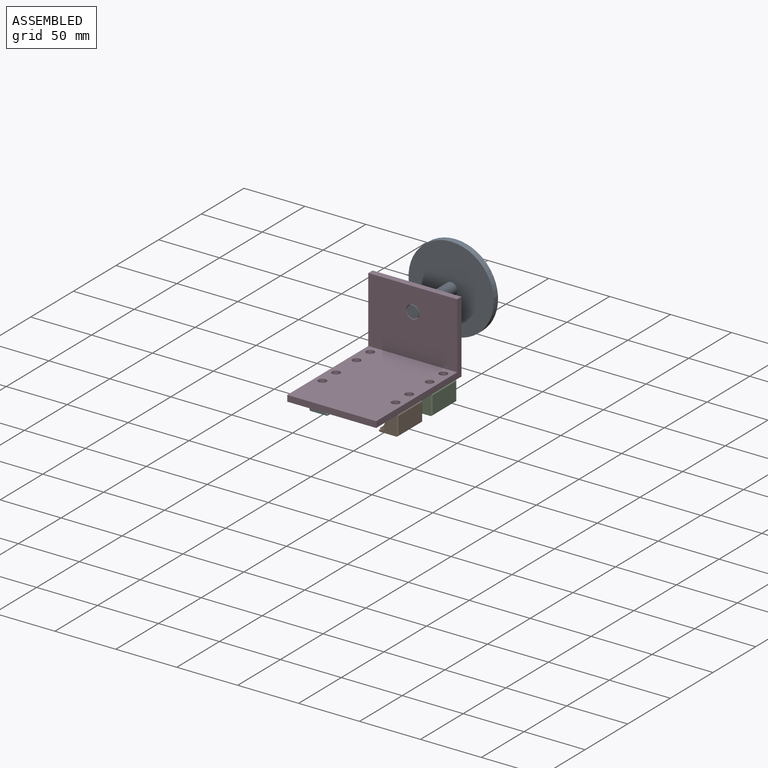
[diagram: assembled view]
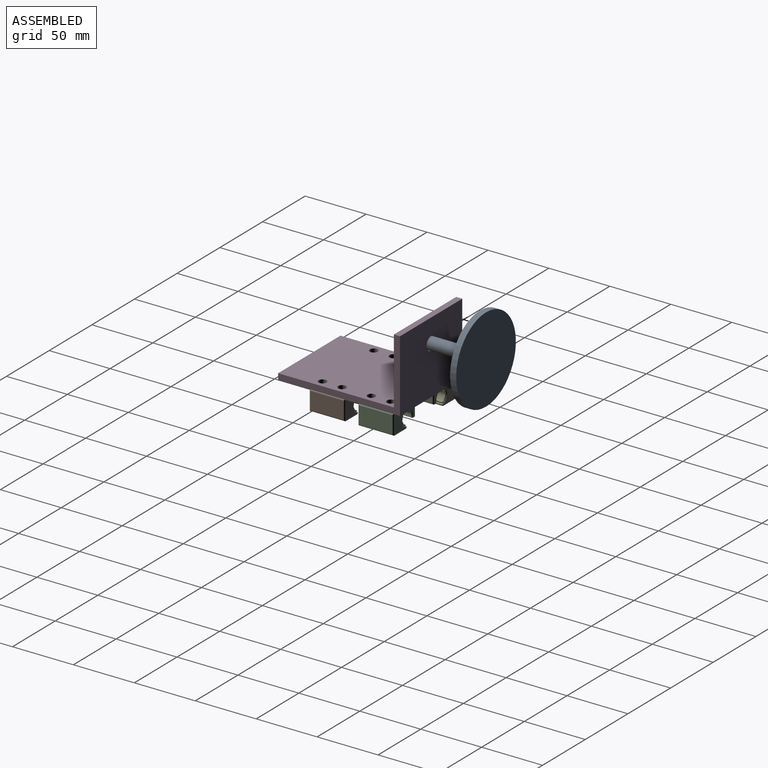
[diagram: assembled view, second angle]
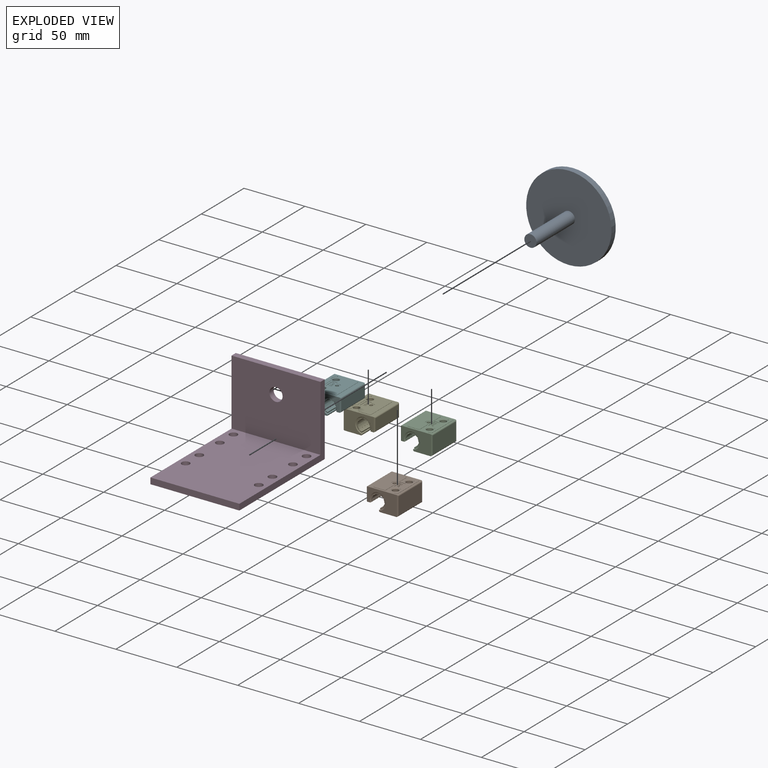
[diagram: exploded view]
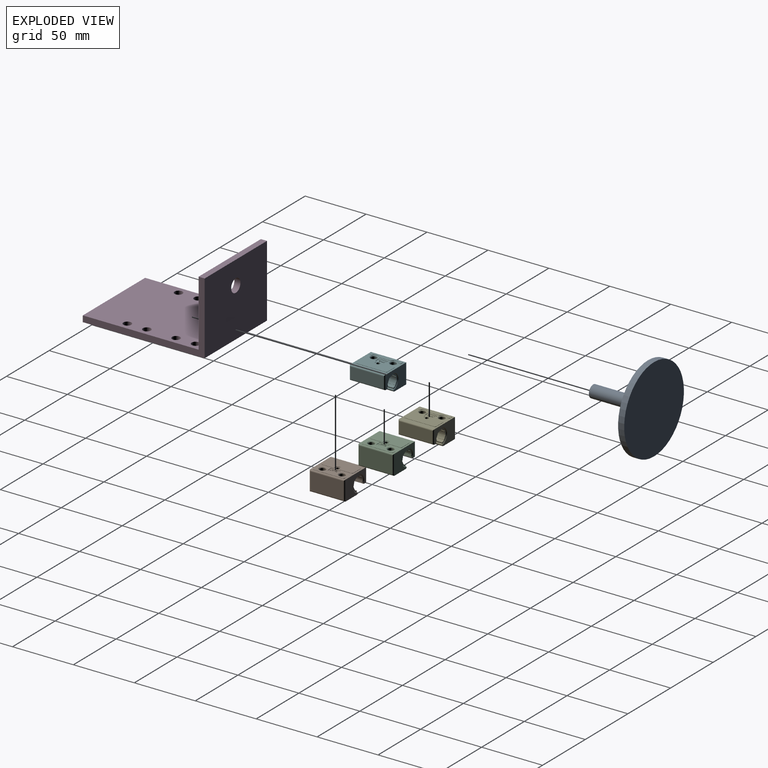
[diagram: exploded view, second angle]
ASSEMBLY  parts=6 mates=5
PART A: 5 faces, bbox 70x50x70 mm
  f0: cylinder r=35mm len=70mm, axis (0,1,0), area 1099.6mm2, adj f1,f2
  f1: plane 70x70mm, normal (0,-1,0), area 3769.9mm2, adj f0,f3
  f2: plane 70x70mm, normal (0,1,0), area 3848.5mm2, adj f0
  f3: cylinder r=5mm len=45mm, axis (0,1,0), area 1413.7mm2, adj f1,f4
  f4: plane 10x10mm, normal (0,-1,0), area 78.5mm2, adj f3
PART B: 223 faces, bbox 26x29x16.5 mm
  f0: cylinder r=5mm len=28mm, axis (0,1,0), area 73.3mm2, adj f176,f204,f212,f214
  f1: cylinder r=5mm len=28mm, axis (0,1,0), area 73.3mm2, adj f176,f209,f212,f218
  f2: cone r=2.75mm half-angle=45deg, axis (0,0,-1), area 12.2mm2, adj f3,f124
  f3: cylinder r=2.5mm len=11.8mm, axis (0,0,1), area 185.4mm2, adj f2,f4
  f4: cone r=2.75mm half-angle=45deg, axis (0,0,1), area 12.2mm2, adj f3,f161
  f5: cone r=2.75mm half-angle=45deg, axis (0,0,-1), area 12.2mm2, adj f6,f123
  f6: cylinder r=2.5mm len=11.8mm, axis (0,0,1), area 185.4mm2, adj f5,f7
  f7: cone r=2.75mm half-angle=45deg, axis (0,0,1), area 12.2mm2, adj f6,f161
  f8: cylinder r=1.4mm len=4.05mm, axis (0,0,1), area 27.7mm2, adj f9,f161
  f9: cylinder r=6.9mm len=13.8mm, axis (0,1,0), area 95mm2, adj f8,f20,f125,f126,f163
  f10: cone r=6.25mm half-angle=45deg, axis (0,1,0), area 21.8mm2, adj f21,f22,f127,f129,f131,f132,f133,f212
  f11: cone r=6.25mm half-angle=45deg, axis (0,-1,0), area 21.8mm2, adj f18,f19,f113,f128,f130,f164,f165,f176
  f12: cylinder r=4.75mm len=9.5mm, axis (0,0,1), area 104.5mm2, adj f124,f162
  f13: cylinder r=4.75mm len=9.5mm, axis (0,0,1), area 104.5mm2, adj f123,f162
  f14: cylinder r=0.1mm len=0.2mm, axis (0,0,1), area 0.1mm2, adj f87,f105
  f15: cylinder r=0.68mm len=1.35mm, axis (0,0,1), area 0.3mm2, adj f25,f40,f108
  f16: cylinder r=0.28mm len=0.55mm, axis (0,0,1), area 0.3mm2, adj f23,f105
  f17: cylinder r=0.25mm len=0.5mm, axis (0,0,1), area 0.2mm2, adj f23,f103
  f18: cylinder r=6mm len=12.5mm, axis (0,1,0), area 5.4mm2, adj f11,f20,f128,f173
  f19: cylinder r=6mm len=12.5mm, axis (0,1,0), area 5.4mm2, adj f11,f20,f165,f172
  f20: plane 13.8x13.73mm, normal (0,1,0), area 14.9mm2, adj f9,f18,f19,f126,f128,f130,f163,f164
  f21: cylinder r=6mm len=12.5mm, axis (0,1,0), area 5.4mm2, adj f10,f125,f132,f172
  f22: cylinder r=6mm len=12.5mm, axis (0,1,0), area 5.4mm2, adj f10,f125,f127,f173
  f23: plane 0.55x0.55mm, normal (0,0,1), area 0mm2, adj f16,f17
  f24: plane 0.15x0.15mm, normal (-1,0,0), area 0mm2, adj f32,f40,f41,f105
  f25: plane 1.35x0.15mm, normal (-1,0,0), area 0.2mm2, adj f15,f40,f108
  f26: plane 1.35x0.15mm, normal (-1,0,0), area 0.2mm2, adj f37,f40,f52,f105
  f27: plane 0.26x0.15mm, normal (-1,0,0), area 0mm2, adj f33,f35,f40,f105
  f28: plane 0.15x0.15mm, normal (1,0,0), area 0mm2, adj f32,f39,f40,f105
  f29: plane 1.34x0.15mm, normal (1,0,0), area 0.2mm2, adj f38,f40,f107
  f30: plane 1.35x0.15mm, normal (1,0,0), area 0.2mm2, adj f36,f40,f106
  f31: plane 0.24x0.15mm, normal (1,0,0), area 0mm2, adj f33,f34,f40,f105
  f32: plane 0.15x0.03mm, normal (0,-1,0), area 0mm2, adj f24,f28,f40,f105
  f33: plane 0.15x0.03mm, normal (0,1,0), area 0mm2, adj f27,f31,f40,f105
  f34: cylinder r=0.45mm len=0.75mm, axis (0,0,1), area 0.2mm2, adj f31,f40,f66,f105
  f35: cylinder r=0.45mm len=0.31mm, axis (0,0,1), area 0.1mm2, adj f27,f40,f65,f105
  f36: cylinder r=0.68mm len=1.35mm, axis (0,0,1), area 0.3mm2, adj f30,f40,f106
  f37: plane 0.88x0.15mm, normal (0,1,0), area 0.1mm2, adj f26,f40,f51,f105
  f38: cylinder r=0.68mm len=1.34mm, axis (0,0,1), area 0.3mm2, adj f29,f40,f107
  f39: plane 0.75x0.15mm, normal (0,-1,0), area 0.1mm2, adj f28,f40,f86,f105
  f40: plane 5x2.53mm, normal (0,0,1), area 3.1mm2, adj f15,f24,f25,f26,f27,f28,f29,f30
  f41: plane 0.9x0.15mm, normal (0,-1,0), area 0.1mm2, adj f24,f40,f42,f105
  f42: plane 0.15x0.15mm, normal (-1,0,0), area 0mm2, adj f40,f41,f43,f105
  f43: plane 0.88x0.15mm, normal (0,1,0), area 0.1mm2, adj f40,f42,f44,f105
  f44: plane 0.15x0.03mm, normal (-1,0,0), area 0mm2, adj f40,f43,f45,f105
  f45: cylinder r=0.81mm len=1.51mm, axis (0,0,1), area 0.3mm2, adj f40,f44,f46,f105
  f46: plane 0.35x0.15mm, normal (0,-1,0), area 0.1mm2, adj f40,f45,f47,f105
  f47: plane 0.15x0.15mm, normal (-1,0,0), area 0mm2, adj f40,f46,f48,f105
  f48: plane 0.88x0.15mm, normal (0,1,0), area 0.1mm2, adj f40,f47,f49,f105
  f49: plane 0.15x0.03mm, normal (-1,0,0), area 0mm2, adj f40,f48,f50,f105
  f50: plane 0.88x0.15mm, normal (0,-1,0), area 0.1mm2, adj f40,f49,f51,f105
  f51: plane 0.15x0.15mm, normal (-1,0,0), area 0mm2, adj f37,f40,f50,f105
  f52: cylinder r=0.68mm len=0.15mm, axis (0,0,1), area 0mm2, adj f26,f40,f53,f105
  f53: plane 0.83x0.15mm, normal (0,-1,0), area 0.1mm2, adj f40,f52,f54,f105
  f54: plane 0.15x0.15mm, normal (-1,0,0), area 0mm2, adj f40,f53,f55,f105
  f55: plane 0.88x0.15mm, normal (0,1,0), area 0.1mm2, adj f40,f54,f56,f105
  f56: plane 0.3x0.15mm, normal (-1,0,0), area 0mm2, adj f40,f55,f57,f105
  f57: cylinder r=0.49mm len=0.43mm, axis (0,0,1), area 0.1mm2, adj f40,f56,f58,f105
  f58: cylinder r=0.4mm len=0.45mm, axis (0,0,1), area 0.1mm2, adj f40,f57,f59,f105
  f59: plane 0.38x0.15mm, normal (-1,0,0), area 0.1mm2, adj f40,f58,f60,f105
  f60: cylinder r=0.35mm len=0.35mm, axis (0,0,1), area 0.1mm2, adj f40,f59,f61,f105
  f61: plane 0.15x0.15mm, normal (1,0,0), area 0mm2, adj f40,f60,f62,f105
  f62: cylinder r=0.26mm len=0.25mm, axis (0,0,1), area 0.1mm2, adj f40,f61,f63,f105
  f63: plane 0.28x0.15mm, normal (1,0,0), area 0mm2, adj f40,f62,f64,f105
  f64: cylinder r=0.3mm len=0.6mm, axis (0,0,1), area 0.1mm2, adj f40,f63,f65,f105
  f65: plane 0.28x0.15mm, normal (-1,0,0), area 0mm2, adj f35,f40,f64,f105
  f66: plane 0.4x0.15mm, normal (1,0,0), area 0.1mm2, adj f34,f40,f67,f105
  f67: cylinder r=0.35mm len=0.35mm, axis (0,0,1), area 0.1mm2, adj f40,f66,f68,f105
  f68: plane 0.15x0.15mm, normal (-1,0,0), area 0mm2, adj f40,f67,f69,f105
  f69: cylinder r=0.26mm len=0.25mm, axis (0,0,1), area 0.1mm2, adj f40,f68,f70,f105
  f70: plane 0.35x0.15mm, normal (-1,0,0), area 0.1mm2, adj f40,f69,f71,f105
  f71: cylinder r=0.3mm len=0.6mm, axis (0,0,1), area 0.1mm2, adj f40,f70,f72,f105
  f72: plane 0.78x0.15mm, normal (1,0,0), area 0.1mm2, adj f40,f71,f73,f105
  f73: plane 0.75x0.15mm, normal (0,1,0), area 0.1mm2, adj f40,f72,f74,f105
  f74: plane 0.15x0.15mm, normal (1,0,0), area 0mm2, adj f40,f73,f75,f105
  f75: plane 0.35x0.15mm, normal (0,-1,0), area 0.1mm2, adj f40,f74,f76,f105
  f76: cylinder r=0.8mm len=1.5mm, axis (0,0,1), area 0.3mm2, adj f40,f75,f77,f105
  f77: plane 0.15x0.03mm, normal (1,0,0), area 0mm2, adj f40,f76,f78,f105
  f78: plane 0.75x0.15mm, normal (0,1,0), area 0.1mm2, adj f40,f77,f79,f105
  f79: cylinder r=0.82mm len=1.65mm, axis (0,0,1), area 0.4mm2, adj f40,f78,f80,f105
  f80: plane 0.15x0.15mm, normal (-1,0,0), area 0mm2, adj f40,f79,f81,f105
  f81: cylinder r=0.68mm len=1.35mm, axis (0,0,1), area 0.3mm2, adj f40,f80,f82,f105
  f82: plane 0.4x0.15mm, normal (0,-1,0), area 0.1mm2, adj f40,f81,f83,f105
  f83: cylinder r=0.79mm len=1.5mm, axis (0,0,1), area 0.3mm2, adj f40,f82,f84,f105
  f84: plane 0.15x0.03mm, normal (1,0,0), area 0mm2, adj f40,f83,f85,f105
  f85: plane 0.75x0.15mm, normal (0,1,0), area 0.1mm2, adj f40,f84,f86,f105
  f86: plane 0.15x0.15mm, normal (1,0,0), area 0mm2, adj f39,f40,f85,f105
  f87: plane 0.2x0.2mm, normal (0,0,1), area 0mm2, adj f14
  f88: plane 0.15x0.15mm, normal (0,1,0), area 0mm2, adj f89,f91,f102,f104
  f89: plane 0.15x0.06mm, normal (1,0,0), area 0mm2, adj f88,f90,f102,f104
  f90: cylinder r=0.07mm len=0.15mm, axis (0,0,1), area 0mm2, adj f89,f91,f102,f104
  f91: plane 0.15x0.06mm, normal (-1,0,0), area 0mm2, adj f88,f90,f102,f104
  f92: plane 0.18x0.15mm, normal (0,1,0), area 0mm2, adj f93,f101,f102,f103
  f93: plane 0.15x0.01mm, normal (1,0,0), area 0mm2, adj f92,f94,f102,f103
  f94: plane 0.35x0.15mm, normal (0,-1,0), area 0.1mm2, adj f93,f95,f102,f103
  f95: plane 0.15x0.08mm, normal (-1,0,0), area 0mm2, adj f94,f96,f102,f103
  f96: cylinder r=0.09mm len=0.18mm, axis (0,0,1), area 0mm2, adj f95,f97,f102,f103
  f97: plane 0.15x0.01mm, normal (1,0,0), area 0mm2, adj f96,f98,f102,f103
  f98: plane 0.18x0.15mm, normal (-0.5,0.87,0), area 0mm2, adj f97,f99,f102,f103
  f99: plane 0.15x0.01mm, normal (1,0,0), area 0mm2, adj f98,f100,f102,f103
  f100: plane 0.18x0.15mm, normal (0.5,-0.87,0), area 0mm2, adj f99,f101,f102,f103
  f101: plane 0.15x0.04mm, normal (1,0,0), area 0mm2, adj f92,f100,f102,f103
  f102: plane 0.35x0.16mm, normal (0,0,1), area 0mm2, adj f88,f89,f90,f91,f92,f93,f94,f95
  f103: plane 0.5x0.5mm, normal (0,0,1), area 0.2mm2, adj f17,f92,f93,f94,f95,f96,f97,f98
  f104: plane 0.15x0.14mm, normal (0,0,1), area 0mm2, adj f88,f89,f90,f91
  f105: plane 8x4mm, normal (0,0,1), area 26.6mm2, adj f14,f16,f24,f26,f27,f28,f31,f32
  f106: plane 1.35x0.6mm, normal (0,0,1), area 0.6mm2, adj f30,f36
  f107: plane 1.34x0.6mm, normal (0,0,1), area 0.6mm2, adj f29,f38
  f108: plane 1.35x0.73mm, normal (0,0,1), area 0.8mm2, adj f15,f25
  f109: cylinder r=1mm len=11.3mm, axis (0,0,1), area 16.2mm2, adj f110,f111,f131,f160
  f110: cylinder r=1mm len=29mm, axis (0,1,0), area 44mm2, adj f109,f111,f112,f126
  f111: plane 27x9.3mm, normal (1,0,0), area 251.1mm2, adj f109,f110,f112,f160
  f112: cylinder r=1mm len=11.3mm, axis (0,0,1), area 16.2mm2, adj f110,f111,f113,f160
  f113: plane 24x16.3mm, normal (0,-1,0), area 232.2mm2, adj f11,f112,f117,f118,f126,f130,f161,f162
  f114: cylinder r=1mm len=16.24mm, axis (0,0,1), area 24mm2, adj f115,f116,f118,f131
  f115: cylinder r=1mm len=29mm, axis (0,1,0), area 44mm2, adj f114,f116,f117,f161
  f116: plane 27x14.3mm, normal (-1,0,0), area 386.1mm2, adj f114,f115,f117,f118
  f117: cylinder r=1mm len=16.24mm, axis (0,0,1), area 24mm2, adj f113,f115,f116,f118
  f118: cylinder r=1.53mm len=29mm, axis (0,1,0), area 55.1mm2, adj f113,f114,f116,f117,f131,f162
  f119: plane 4x0.3mm, normal (0,1,0), area 1.2mm2, adj f105,f120,f122,f161
  f120: plane 8x0.3mm, normal (1,0,0), area 2.4mm2, adj f105,f119,f121,f161
  f121: plane 4x0.3mm, normal (0,-1,0), area 1.2mm2, adj f105,f120,f122,f161
  f122: plane 8x0.3mm, normal (-1,0,0), area 2.4mm2, adj f105,f119,f121,f161
  f123: plane 9.5x9.5mm, normal (0,0,-1), area 42.6mm2, adj f5,f13
  f124: plane 9.5x9.5mm, normal (0,0,-1), area 42.6mm2, adj f2,f12
  f125: plane 13.8x13.73mm, normal (0,-1,0), area 14.9mm2, adj f9,f21,f22,f126,f127,f129,f132,f133
  f126: plane 29x2.37mm, normal (0,0,-1), area 67.8mm2, adj f9,f20,f110,f113,f125,f129,f130,f131
  f127: cylinder r=0.5mm len=12.91mm, axis (0,1,0), area 8.6mm2, adj f10,f22,f125,f129
  f128: cylinder r=0.5mm len=12.91mm, axis (0,1,0), area 8.6mm2, adj f11,f18,f20,f130
  f129: plane 13x0.18mm, normal (-0.5,0,-0.87), area 2.7mm2, adj f10,f125,f126,f127,f131
  f130: plane 13x0.18mm, normal (-0.5,0,-0.87), area 2.7mm2, adj f11,f20,f113,f126,f128
  f131: plane 24x16.3mm, normal (0,1,0), area 232.2mm2, adj f10,f109,f114,f118,f126,f129,f133,f161
  f132: cylinder r=0.5mm len=12.91mm, axis (0,1,0), area 8.6mm2, adj f10,f21,f125,f133
  f133: plane 13x0.15mm, normal (1,0,0), area 2mm2, adj f10,f125,f131,f132,f163
  f134: cylinder r=3.5mm len=6.32mm, axis (0,0,-1), area 1.6mm2, adj f135,f145,f146,f161
  f135: plane 9.68x0.2mm, normal (1,0,0), area 1.9mm2, adj f134,f136,f146,f161
  f136: cylinder r=3.5mm len=6.32mm, axis (0,0,-1), area 1.6mm2, adj f135,f137,f146,f161
  f137: plane 0.84x0.2mm, normal (1,0,0), area 0.2mm2, adj f136,f138,f146,f161
  f138: cylinder r=1mm len=1mm, axis (0,0,-1), area 0.3mm2, adj f137,f139,f146,f161
  f139: plane 1.5x0.2mm, normal (0,1,0), area 0.3mm2, adj f138,f140,f146,f161
  f140: cylinder r=1mm len=1mm, axis (0,0,-1), area 0.3mm2, adj f139,f141,f146,f161
  f141: plane 24x0.2mm, normal (-1,0,0), area 4.8mm2, adj f140,f142,f146,f161
  f142: cylinder r=1mm len=1mm, axis (0,0,-1), area 0.3mm2, adj f141,f143,f146,f161
  f143: plane 1.5x0.2mm, normal (0,-1,0), area 0.3mm2, adj f142,f144,f146,f161
  f144: cylinder r=1mm len=1mm, axis (0,0,-1), area 0.3mm2, adj f143,f145,f146,f161
  f145: plane 0.84x0.2mm, normal (1,0,0), area 0.2mm2, adj f134,f144,f146,f161
  f146: plane 26x3.5mm, normal (0,0,1), area 72mm2, adj f134,f135,f136,f137,f138,f139,f140,f141
  f147: cylinder r=1mm len=1mm, axis (0,0,-1), area 0.3mm2, adj f148,f158,f159,f161
  f148: plane 24x0.2mm, normal (1,0,0), area 4.8mm2, adj f147,f149,f159,f161
  f149: cylinder r=1mm len=1mm, axis (0,0,-1), area 0.3mm2, adj f148,f150,f159,f161
  f150: plane 8x0.2mm, normal (0,1,0), area 1.6mm2, adj f149,f151,f159,f161
  f151: cylinder r=1mm len=1mm, axis (0,0,-1), area 0.3mm2, adj f150,f152,f159,f161
  f152: plane 9.6x0.2mm, normal (-1,0,0), area 1.9mm2, adj f151,f153,f159,f161
  f153: plane 1.4x0.2mm, normal (0,-1,0), area 0.3mm2, adj f152,f154,f159,f161
  f154: cylinder r=2.4mm len=4.8mm, axis (0,0,-1), area 1.5mm2, adj f153,f155,f159,f161
  f155: plane 1.4x0.2mm, normal (0,1,0), area 0.3mm2, adj f154,f156,f159,f161
  f156: plane 9.6x0.2mm, normal (-1,0,0), area 1.9mm2, adj f155,f157,f159,f161
  f157: cylinder r=1mm len=1mm, axis (0,0,-1), area 0.3mm2, adj f156,f158,f159,f161
  f158: plane 8x0.2mm, normal (0,-1,0), area 1.6mm2, adj f147,f157,f159,f161
  f159: plane 26x10mm, normal (0,0,1), area 243.4mm2, adj f147,f148,f149,f150,f151,f152,f153,f154
  f160: cylinder r=1mm len=29mm, axis (0,1,0), area 44mm2, adj f109,f111,f112,f161
  f161: plane 29x24mm, normal (0,0,1), area 285.9mm2, adj f4,f7,f8,f113,f115,f119,f120,f121
  f162: plane 29x13.1mm, normal (0,0,-1), area 238.1mm2, adj f12,f13,f113,f118,f131,f163
  f163: cylinder r=1mm len=29mm, axis (0,1,0), area 44.5mm2, adj f9,f20,f113,f125,f131,f133,f162,f164
  f164: plane 13x0.15mm, normal (1,0,0), area 2mm2, adj f11,f20,f113,f163,f165
  f165: cylinder r=0.5mm len=12.91mm, axis (0,1,0), area 8.6mm2, adj f11,f19,f20,f164
  f166: cylinder r=6mm len=3mm, axis (0,1,0), area 4.7mm2, adj f20,f125,f187,f188
  f167: cylinder r=6mm len=3mm, axis (0,1,0), area 4.7mm2, adj f20,f125,f184,f185
  f168: cylinder r=6mm len=3mm, axis (0,1,0), area 4.7mm2, adj f20,f125,f182,f198
  f169: cylinder r=6mm len=3mm, axis (0,1,0), area 4.7mm2, adj f20,f125,f195,f196
  f170: cylinder r=6mm len=3mm, axis (0,1,0), area 4.7mm2, adj f20,f125,f192,f193
  f171: cylinder r=6mm len=3mm, axis (0,1,0), area 4.7mm2, adj f20,f125,f190,f191
  f172: plane 28x1.64mm, normal (0.97,0,-0.26), area 30.1mm2, adj f19,f20,f21,f125,f174,f176,f203,f212
  f173: plane 28x1.64mm, normal (-0.26,0,-0.97), area 30.1mm2, adj f18,f20,f22,f125,f175,f176,f200,f212
  f174: cylinder r=6.7mm len=3mm, axis (0,1,0), area 4.8mm2, adj f20,f125,f172,f191
  f175: cylinder r=6.7mm len=3mm, axis (0,1,0), area 4.8mm2, adj f20,f125,f173,f192
  f176: plane 12x11.75mm, normal (0,-1,0), area 23.2mm2, adj f0,f1,f11,f172,f173,f199,f200,f201
  f177: plane 1.5x0.76mm, normal (-0.87,0,-0.5), area 1.3mm2, adj f178,f179,f181,f183
  f178: plane 2.17x1.76mm, normal (0,-1,0), area 1.6mm2, adj f177,f180,f181,f183
  f179: plane 2.17x1.76mm, normal (0,1,0), area 1.6mm2, adj f177,f180,f181,f183
  f180: plane 1.5x0.76mm, normal (0.87,0,0.5), area 1.3mm2, adj f178,f179,f181,f183
  f181: plane 1.73x1.5mm, normal (-0.5,0,0.87), area 3mm2, adj f177,f178,f179,f180
  f182: plane 3x0.68mm, normal (0.97,0,0.26), area 2.1mm2, adj f20,f125,f168,f183
  f183: cylinder r=6.7mm len=3mm, axis (0,1,0), area 7.5mm2, adj f20,f125,f177,f178,f179,f180,f182,f184
  f184: plane 3x0.5mm, normal (-0.71,0,-0.71), area 2.1mm2, adj f20,f125,f167,f183
  f185: plane 3x0.61mm, normal (0.5,0,0.87), area 2.1mm2, adj f20,f125,f167,f186
  f186: cylinder r=6.7mm len=3.35mm, axis (0,1,0), area 10.5mm2, adj f20,f125,f185,f187
  f187: plane 3x0.7mm, normal (0,0,-1), area 2.1mm2, adj f20,f125,f166,f186
  f188: plane 3x0.68mm, normal (-0.26,0,0.97), area 2.1mm2, adj f20,f125,f166,f189
  f189: cylinder r=6.7mm len=3mm, axis (0,1,0), area 10.5mm2, adj f20,f125,f188,f190
  f190: plane 3x0.5mm, normal (0.71,0,-0.71), area 2.1mm2, adj f20,f125,f171,f189
  f191: plane 3x0.61mm, normal (-0.87,0,0.5), area 2.1mm2, adj f20,f125,f171,f174
  f192: plane 3x0.7mm, normal (0,0,1), area 2.1mm2, adj f20,f125,f170,f175
  f193: plane 3x0.68mm, normal (0.26,0,-0.97), area 2.1mm2, adj f20,f125,f170,f194
  f194: cylinder r=6.7mm len=3mm, axis (0,1,0), area 10.5mm2, adj f20,f125,f193,f195
  f195: plane 3x0.5mm, normal (-0.71,0,0.71), area 2.1mm2, adj f20,f125,f169,f194
  f196: plane 3x0.61mm, normal (0.87,0,-0.5), area 2.1mm2, adj f20,f125,f169,f197
  f197: cylinder r=6.7mm len=3.35mm, axis (0,1,0), area 10.5mm2, adj f20,f125,f196,f198
  f198: plane 3x0.7mm, normal (-1,0,0), area 2.1mm2, adj f20,f125,f168,f197
  f199: cylinder r=5mm len=28mm, axis (0,1,0), area 73.3mm2, adj f176,f207,f212,f220
  f200: cylinder r=5mm len=28mm, axis (0,1,0), area 32mm2, adj f173,f176,f208,f212
  f201: cylinder r=5mm len=28mm, axis (0,1,0), area 73.3mm2, adj f176,f206,f212,f222
  f202: cylinder r=5mm len=28mm, axis (0,1,0), area 73.3mm2, adj f176,f205,f211,f212
  f203: cylinder r=5mm len=28mm, axis (0,1,0), area 32mm2, adj f172,f176,f212,f216
  f204: plane 28x0.21mm, normal (0.71,0,-0.71), area 8.4mm2, adj f0,f176,f212,f215
  f205: plane 28x0.3mm, normal (0,0,-1), area 8.4mm2, adj f176,f202,f212,f213
  f206: plane 28x0.21mm, normal (-0.71,0,-0.71), area 8.4mm2, adj f176,f201,f210,f212
  f207: plane 28x0.3mm, normal (-1,0,0), area 8.4mm2, adj f176,f199,f212,f221
  f208: plane 28x0.3mm, normal (0,0,1), area 8.4mm2, adj f176,f200,f212,f217
  f209: plane 28x0.21mm, normal (-0.71,0,0.71), area 8.4mm2, adj f1,f176,f212,f219
  f210: cylinder r=5.3mm len=28mm, axis (0,1,0), area 38.9mm2, adj f176,f206,f211,f212
  f211: plane 28x0.26mm, normal (0.5,0,0.87), area 8.4mm2, adj f176,f202,f210,f212
  f212: plane 12x11.75mm, normal (0,1,0), area 23.2mm2, adj f0,f1,f10,f172,f173,f199,f200,f201
  f213: cylinder r=5.3mm len=28mm, axis (0,1,0), area 38.9mm2, adj f176,f205,f212,f214
  f214: plane 28x0.29mm, normal (-0.26,0,0.97), area 8.4mm2, adj f0,f176,f212,f213
  f215: cylinder r=5.3mm len=28mm, axis (0,1,0), area 38.9mm2, adj f176,f204,f212,f216
  f216: plane 28x0.26mm, normal (-0.87,0,0.5), area 8.4mm2, adj f176,f203,f212,f215
  f217: cylinder r=5.3mm len=28mm, axis (0,1,0), area 38.9mm2, adj f176,f208,f212,f218
  f218: plane 28x0.29mm, normal (0.26,0,-0.97), area 8.4mm2, adj f1,f176,f212,f217
  f219: cylinder r=5.3mm len=28mm, axis (0,1,0), area 38.9mm2, adj f176,f209,f212,f220
  f220: plane 28x0.26mm, normal (0.87,0,-0.5), area 8.4mm2, adj f176,f199,f212,f219
  f221: cylinder r=5.3mm len=28mm, axis (0,1,0), area 38.9mm2, adj f176,f207,f212,f222
  f222: plane 28x0.29mm, normal (0.97,0,0.26), area 8.4mm2, adj f176,f201,f212,f221
PART C: same geometry as B
PART D: 17 faces, bbox 73x100x59.1 mm
  f0: plane 95x73mm, normal (0,0,1), area 6669.5mm2, adj f1,f3,f4,f8,f9,f10,f11,f12
  f1: plane 100x59.12mm, normal (-1,0,0), area 770.6mm2, adj f0,f2,f4,f5,f7,f8
  f2: plane 100x73mm, normal (0,0,-1), area 7034.5mm2, adj f1,f3,f4,f5,f9,f10,f11,f12
  f3: plane 100x59.12mm, normal (1,0,0), area 770.6mm2, adj f0,f2,f4,f5,f7,f8
  f4: plane 73x5mm, normal (0,-1,0), area 365mm2, adj f0,f1,f2,f3
  f5: plane 73x59.12mm, normal (0,1,0), area 4223.4mm2, adj f1,f2,f3,f6,f7
  f6: cylinder r=5.43mm len=10.86mm, axis (0,1,0), area 170.5mm2, adj f5,f8
  f7: plane 73x5mm, normal (0,0,1), area 365mm2, adj f1,f3,f5,f8
  f8: plane 73x54.12mm, normal (0,-1,0), area 3858.4mm2, adj f0,f1,f3,f6,f7
  f9: cylinder r=3.25mm len=6.5mm, axis (0,0,-1), area 102.1mm2, adj f0,f2
  f10: cylinder r=3.25mm len=6.5mm, axis (0,0,-1), area 102.1mm2, adj f0,f2
  f11: cylinder r=3.25mm len=6.5mm, axis (0,0,-1), area 102.1mm2, adj f0,f2
  f12: cylinder r=3.25mm len=6.5mm, axis (0,0,-1), area 102.1mm2, adj f0,f2
  f13: cylinder r=3.25mm len=6.5mm, axis (0,0,-1), area 102.1mm2, adj f0,f2
  f14: cylinder r=3.25mm len=6.5mm, axis (0,0,-1), area 102.1mm2, adj f0,f2
  f15: cylinder r=3.25mm len=6.5mm, axis (0,0,-1), area 102.1mm2, adj f0,f2
  f16: cylinder r=3.25mm len=6.5mm, axis (0,0,-1), area 102.1mm2, adj f0,f2
PART E: same geometry as B
PART F: same geometry as B
PLACE A t=(147.59,45,-38.73)mm
PLACE B rot(axis=(0,0,1),180deg) t=(22.1,-45.5,83.33)mm
PLACE C rot(axis=(0,0,1),180deg) t=(22.1,-5.5,83.33)mm
PLACE D at identity
PLACE E t=(-17.9,-34.5,83.53)mm
PLACE F t=(-17.9,-74.5,83.53)mm
MATE fastened F.f2 <-> D.f9  axis (0,0,1) through (-27.9,-52,92.33)mm
MATE fastened E.f2 <-> D.f11  axis (0,0,1) through (-27.9,-12,92.33)mm
MATE fastened A.f0 <-> D.f6  axis (0,-1,0) through (2.1,-5,132.33)mm
MATE fastened C.f2 <-> D.f13  axis (0,0,1) through (32.1,-28,92.33)mm
MATE fastened B.f2 <-> D.f15  axis (0,0,1) through (32.1,-68,92.33)mm
